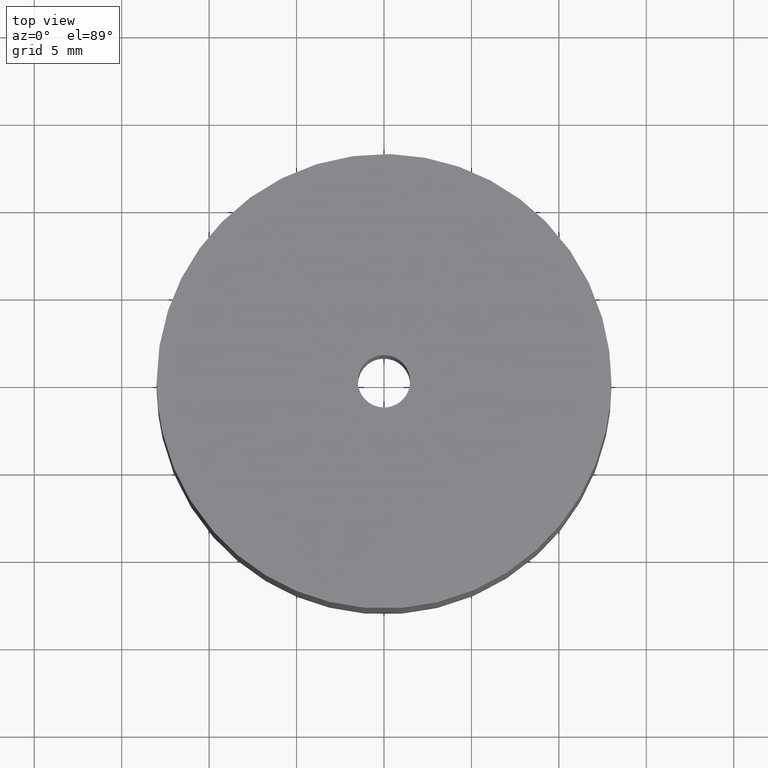
[diagram: clean part render]
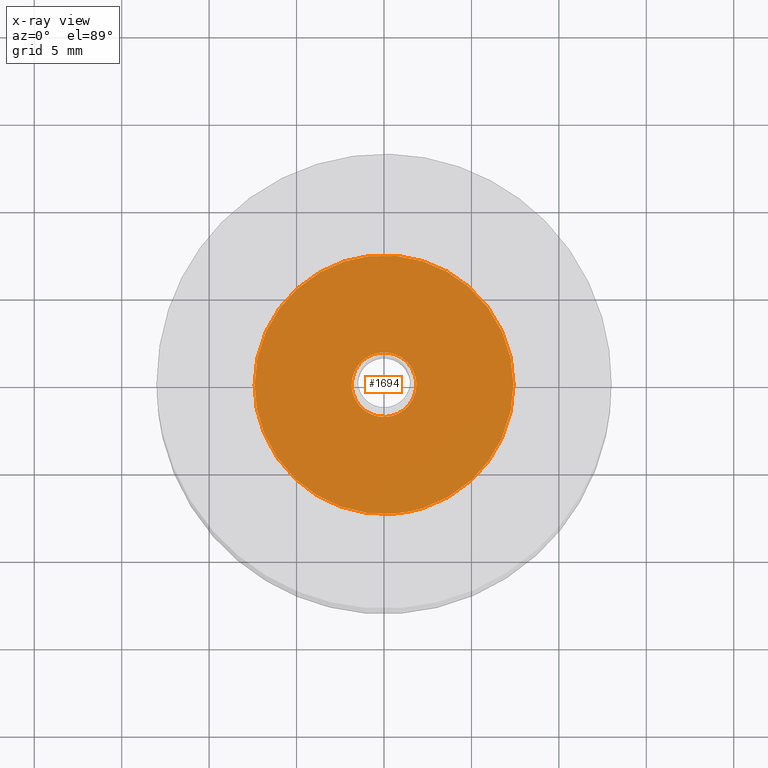
[diagram: x-ray — body ghosted, one internal face saturated and labeled with its STEP entity id]
A machine part, top view, then the same camera in x-ray: the body is ghosted and one INTERNAL B-rep face — a face not visible from any outside direction — is saturated and labeled: STEP entity #1694.
In plain terms, the highlighted face is a freeform B-spline surface patch.
Its self-contained STEP definition (entity closure, byte-faithful):
#1138=CARTESIAN_POINT('',(-0.218360475365740,1.837067963573956,8.500000000000000));
#1139=VERTEX_POINT('',#1138);
#1145=CARTESIAN_POINT('',(1.850000000000000,0.0,8.500000000000000));
#1146=VERTEX_POINT('',#1145);
#1147=CARTESIAN_POINT('',(-0.218360475365740,1.837067963573956,8.500000000000000));
#1148=CARTESIAN_POINT('',(-0.109563176870569,1.850000000000000,8.500000000000000));
#1149=CARTESIAN_POINT('',(0.0,1.850000000000000,8.500000000000000));
#1150=CARTESIAN_POINT('',(1.850000000000000,1.850000000000000,8.500000000000002));
#1151=CARTESIAN_POINT('',(1.850000000000000,0.0,8.500000000000000));
#1159=(BOUNDED_CURVE()B_SPLINE_CURVE(2,(#1147,#1148,#1149,#1150,#1151),.UNSPECIFIED.,.F.,.U.)B_SPLINE_CURVE_WITH_KNOTS((3,2,3),(0.229562736509751,0.250000000000000,0.500000000000000),.UNSPECIFIED.)CURVE()GEOMETRIC_REPRESENTATION_ITEM()RATIONAL_B_SPLINE_CURVE((0.956027269667745,0.976056256450409,1.0,0.707106781186548,1.0))REPRESENTATION_ITEM(''));
#1160=EDGE_CURVE('',#1139,#1146,#1159,.T.);
#1162=CARTESIAN_POINT('',(0.112939798165231,-1.846549377078879,8.500000000000000));
#1163=VERTEX_POINT('',#1162);
#1164=CARTESIAN_POINT('',(1.850000000000000,0.0,8.500000000000000));
#1165=CARTESIAN_POINT('',(1.850000000000000,-1.740306223726925,8.500000000000002));
#1166=CARTESIAN_POINT('',(0.112939798165231,-1.846549377078879,8.500000000000000));
#1174=(BOUNDED_CURVE()B_SPLINE_CURVE(2,(#1164,#1165,#1166),.UNSPECIFIED.,.F.,.U.)B_SPLINE_CURVE_WITH_KNOTS((3,3),(0.500000000000000,0.739332962237158),.UNSPECIFIED.)CURVE()GEOMETRIC_REPRESENTATION_ITEM()RATIONAL_B_SPLINE_CURVE((1.0,0.719603993288802,0.976072041662892))REPRESENTATION_ITEM(''));
#1175=EDGE_CURVE('',#1146,#1163,#1174,.T.);
#1253=CARTESIAN_POINT('',(-1.850000000000000,0.0,8.500000000000000));
#1254=VERTEX_POINT('',#1253);
#1255=CARTESIAN_POINT('',(0.112939798165231,-1.846549377078879,8.500000000000000));
#1256=CARTESIAN_POINT('',(0.056522612128207,-1.850000000000000,8.500000000000000));
#1257=CARTESIAN_POINT('',(0.0,-1.850000000000000,8.500000000000000));
#1258=CARTESIAN_POINT('',(-1.850000000000000,-1.850000000000000,8.500000000000002));
#1259=CARTESIAN_POINT('',(-1.850000000000000,0.0,8.500000000000000));
#1267=(BOUNDED_CURVE()B_SPLINE_CURVE(2,(#1255,#1256,#1257,#1258,#1259),.UNSPECIFIED.,.F.,.U.)B_SPLINE_CURVE_WITH_KNOTS((3,2,3),(0.739332962237157,0.750000000000000,1.0),.UNSPECIFIED.)CURVE()GEOMETRIC_REPRESENTATION_ITEM()RATIONAL_B_SPLINE_CURVE((0.976072041662890,0.987502787897745,1.0,0.707106781186548,1.0))REPRESENTATION_ITEM(''));
#1268=EDGE_CURVE('',#1163,#1254,#1267,.T.);
#1270=CARTESIAN_POINT('',(-1.850000000000000,0.0,8.500000000000000));
#1271=CARTESIAN_POINT('',(-1.850000000000000,1.643125447953913,8.500000000000000));
#1272=CARTESIAN_POINT('',(-0.218360475365740,1.837067963573956,8.500000000000000));
#1280=(BOUNDED_CURVE()B_SPLINE_CURVE(2,(#1270,#1271,#1272),.UNSPECIFIED.,.F.,.U.)B_SPLINE_CURVE_WITH_KNOTS((3,3),(0.0,0.229562736509751),.UNSPECIFIED.)CURVE()GEOMETRIC_REPRESENTATION_ITEM()RATIONAL_B_SPLINE_CURVE((1.0,0.731050524736139,0.956027269667745))REPRESENTATION_ITEM(''));
#1281=EDGE_CURVE('',#1254,#1139,#1280,.T.);
#1309=CARTESIAN_POINT('',(-0.873450816508072,7.348270794624742,8.499999999999886));
#1310=VERTEX_POINT('',#1309);
#1311=CARTESIAN_POINT('',(7.400000000000000,0.0,8.500000000000000));
#1312=VERTEX_POINT('',#1311);
#1313=CARTESIAN_POINT('',(-0.873450816508072,7.348270794624741,8.499999999999886));
#1314=CARTESIAN_POINT('',(-0.438257212127924,7.400000000000000,8.500000000000002));
#1315=CARTESIAN_POINT('',(0.0,7.400000000000000,8.500000000000000));
#1316=CARTESIAN_POINT('',(7.400000000000000,7.400000000000000,8.500000000000002));
#1317=CARTESIAN_POINT('',(7.400000000000000,0.0,8.500000000000000));
#1325=(BOUNDED_CURVE()B_SPLINE_CURVE(2,(#1313,#1314,#1315,#1316,#1317),.UNSPECIFIED.,.F.,.U.)B_SPLINE_CURVE_WITH_KNOTS((3,2,3),(0.229562531472149,0.250000000000000,0.500000000000000),.UNSPECIFIED.)CURVE()GEOMETRIC_REPRESENTATION_ITEM()RATIONAL_B_SPLINE_CURVE((0.956026867785039,0.976056016233917,1.0,0.707106781186548,1.0))REPRESENTATION_ITEM(''));
#1326=EDGE_CURVE('',#1310,#1312,#1325,.T.);
#1367=CARTESIAN_POINT('',(0.451750046562205,-7.386198067703511,8.499999999999655));
#1368=VERTEX_POINT('',#1367);
#1374=CARTESIAN_POINT('',(7.400000000000000,0.0,8.500000000000000));
#1375=CARTESIAN_POINT('',(7.400000000000000,-6.961233530985464,8.500000000000002));
#1376=CARTESIAN_POINT('',(0.451750046562205,-7.386198067703511,8.499999999999655));
#1384=(BOUNDED_CURVE()B_SPLINE_CURVE(2,(#1374,#1375,#1376),.UNSPECIFIED.,.F.,.U.)B_SPLINE_CURVE_WITH_KNOTS((3,3),(0.500000000000000,0.739333175898922),.UNSPECIFIED.)CURVE()GEOMETRIC_REPRESENTATION_ITEM()RATIONAL_B_SPLINE_CURVE((1.0,0.719603742968475,0.976072499581152))REPRESENTATION_ITEM(''));
#1385=EDGE_CURVE('',#1312,#1368,#1384,.T.);
#1408=CARTESIAN_POINT('',(-7.400000000000000,0.0,8.500000000000000));
#1409=VERTEX_POINT('',#1408);
#1410=CARTESIAN_POINT('',(-7.400000000000000,0.0,8.500000000000000));
#1411=CARTESIAN_POINT('',(-7.400000000000000,6.572493761820249,8.499999999999998));
#1412=CARTESIAN_POINT('',(-0.873450816508072,7.348270794624741,8.499999999999886));
#1420=(BOUNDED_CURVE()B_SPLINE_CURVE(2,(#1410,#1411,#1412),.UNSPECIFIED.,.F.,.U.)B_SPLINE_CURVE_WITH_KNOTS((3,3),(0.0,0.229562531472149),.UNSPECIFIED.)CURVE()GEOMETRIC_REPRESENTATION_ITEM()RATIONAL_B_SPLINE_CURVE((1.0,0.731050764952631,0.956026867785039))REPRESENTATION_ITEM(''));
#1421=EDGE_CURVE('',#1409,#1310,#1420,.T.);
#1423=CARTESIAN_POINT('',(0.451750046562205,-7.386198067703511,8.499999999999655));
#1424=CARTESIAN_POINT('',(0.226085862589881,-7.400000000000000,8.500000000000000));
#1425=CARTESIAN_POINT('',(0.0,-7.400000000000000,8.500000000000000));
#1426=CARTESIAN_POINT('',(-7.400000000000000,-7.400000000000000,8.500000000000002));
#1427=CARTESIAN_POINT('',(-7.400000000000000,0.0,8.500000000000000));
#1435=(BOUNDED_CURVE()B_SPLINE_CURVE(2,(#1423,#1424,#1425,#1426,#1427),.UNSPECIFIED.,.F.,.U.)B_SPLINE_CURVE_WITH_KNOTS((3,2,3),(0.739333175898922,0.750000000000000,1.0),.UNSPECIFIED.)CURVE()GEOMETRIC_REPRESENTATION_ITEM()RATIONAL_B_SPLINE_CURVE((0.976072499581152,0.987503038218073,1.0,0.707106781186548,1.0))REPRESENTATION_ITEM(''));
#1436=EDGE_CURVE('',#1368,#1409,#1435,.T.);
#1677=CARTESIAN_POINT('',(-8.139260110246541,-8.139080417619462,8.500000000000000));
#1678=CARTESIAN_POINT('',(8.139260374891164,-8.139080417619462,8.500000000000000));
#1679=CARTESIAN_POINT('',(-8.139260110246541,8.139125407205340,8.500000000000000));
#1680=CARTESIAN_POINT('',(8.139260374891164,8.139125407205340,8.500000000000000));
#1681=B_SPLINE_SURFACE_WITH_KNOTS('',1,1,((#1677,#1679),(#1678,#1680)),.UNSPECIFIED.,.F.,.F.,.U.,(2,2),(2,2),(0.0,16.278520485137712),(0.0,16.278205824824798),.UNSPECIFIED.);
#1682=ORIENTED_EDGE('',*,*,#1421,.T.);
#1683=ORIENTED_EDGE('',*,*,#1326,.T.);
#1684=ORIENTED_EDGE('',*,*,#1385,.T.);
#1685=ORIENTED_EDGE('',*,*,#1436,.T.);
#1686=EDGE_LOOP('',(#1682,#1683,#1684,#1685));
#1687=FACE_OUTER_BOUND('',#1686,.T.);
#1688=ORIENTED_EDGE('',*,*,#1175,.F.);
#1689=ORIENTED_EDGE('',*,*,#1160,.F.);
#1690=ORIENTED_EDGE('',*,*,#1281,.F.);
#1691=ORIENTED_EDGE('',*,*,#1268,.F.);
#1692=EDGE_LOOP('',(#1688,#1689,#1690,#1691));
#1693=FACE_BOUND('',#1692,.T.);
#1694=ADVANCED_FACE('',(#1687,#1693),#1681,.F.);